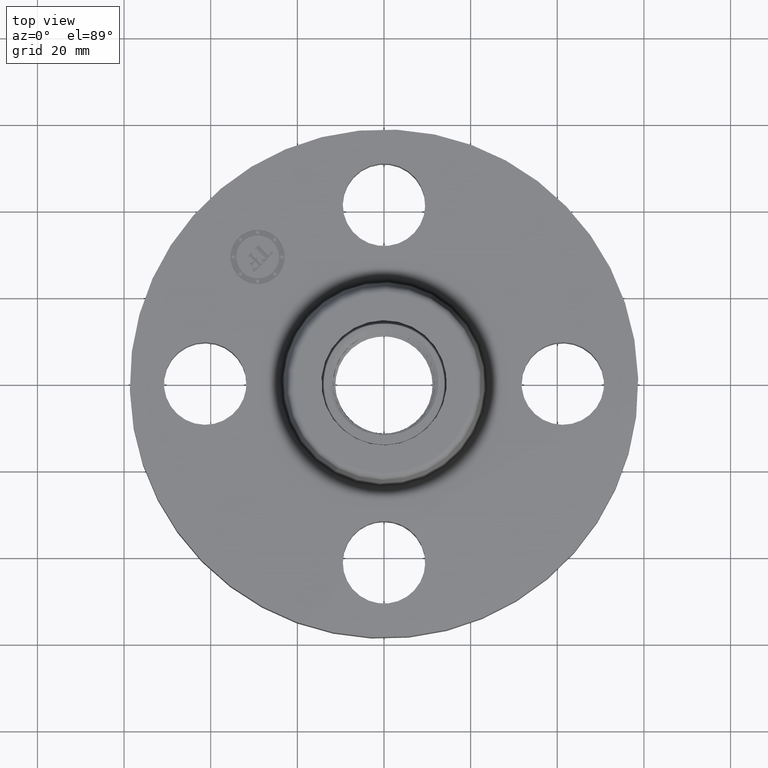
[diagram: clean part render]
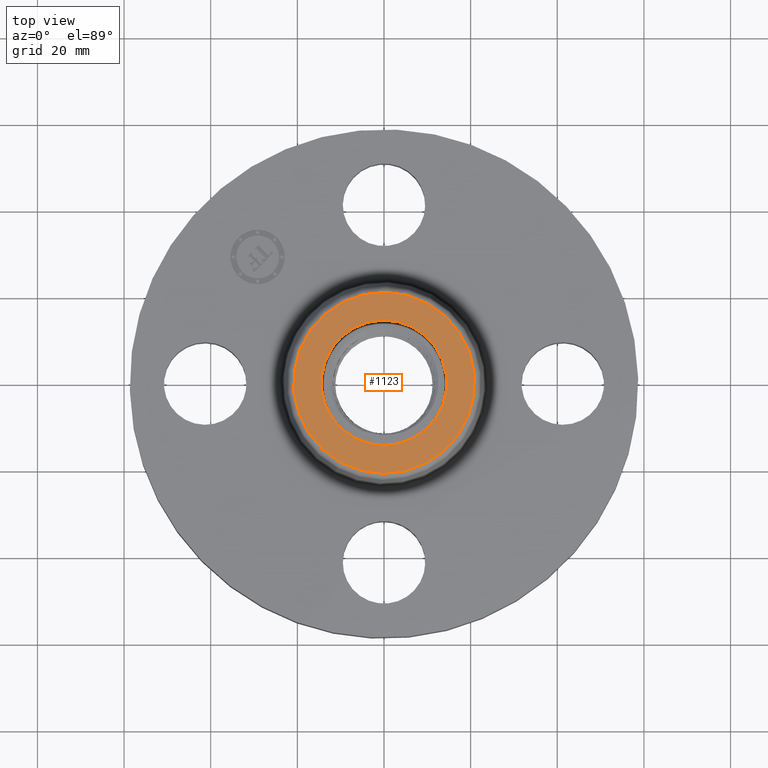
[diagram: same view with one face highlighted and labeled with its STEP entity id]
A machine part, top view. The second image highlights one B-rep face of the part: STEP entity #1123.
In plain terms, the highlighted planar face has unit normal (0, 0, -1).
Its self-contained STEP definition (entity closure, byte-faithful):
#299=AXIS2_PLACEMENT_3D('Circle Axis2P3D',#297,#298,$) ;
#325=AXIS2_PLACEMENT_3D('Circle Axis2P3D',#323,#324,$) ;
#722=AXIS2_PLACEMENT_3D('Circle Axis2P3D',#720,#721,$) ;
#746=AXIS2_PLACEMENT_3D('Circle Axis2P3D',#744,#745,$) ;
#1113=AXIS2_PLACEMENT_3D('Plane Axis2P3D',#1110,#1111,#1112) ;
#297=CARTESIAN_POINT('Axis2P3D Location',(0.,0.,1.)) ;
#301=CARTESIAN_POINT('Vertex',(-0.273272557005,0.50022206028,1.)) ;
#303=CARTESIAN_POINT('Vertex',(0.273272557005,-0.50022206028,1.)) ;
#323=CARTESIAN_POINT('Axis2P3D Location',(0.,0.,1.)) ;
#717=CARTESIAN_POINT('Vertex',(-0.394399308808,-0.721943092224,1.)) ;
#720=CARTESIAN_POINT('Axis2P3D Location',(0.,0.,1.)) ;
#724=CARTESIAN_POINT('Vertex',(0.394399308808,0.721943092224,1.)) ;
#744=CARTESIAN_POINT('Axis2P3D Location',(0.,0.,1.)) ;
#1110=CARTESIAN_POINT('Axis2P3D Location',(0.,0.822649769463,1.)) ;
#298=DIRECTION('Axis2P3D Direction',(0.,0.,0.0393700787402)) ;
#324=DIRECTION('Axis2P3D Direction',(0.,0.,0.0393700787402)) ;
#721=DIRECTION('Axis2P3D Direction',(0.,0.,-0.0393700787402)) ;
#745=DIRECTION('Axis2P3D Direction',(0.,0.,-0.0393700787402)) ;
#1111=DIRECTION('Axis2P3D Direction',(0.,0.,-0.0393700787402)) ;
#1112=DIRECTION('Axis2P3D XDirection',(0.0393700787402,0.,0.)) ;
#1116=ORIENTED_EDGE('',*,*,#748,.F.) ;
#1117=ORIENTED_EDGE('',*,*,#726,.F.) ;
#1120=ORIENTED_EDGE('',*,*,#305,.T.) ;
#1121=ORIENTED_EDGE('',*,*,#327,.T.) ;
#1122=FACE_BOUND('',#1119,.T.) ;
#1123=ADVANCED_FACE('PartBody',(#1118,#1122),#1114,.F.) ;
#300=CIRCLE('generated circle',#299,0.570000000002) ;
#326=CIRCLE('generated circle',#325,0.570000000002) ;
#723=CIRCLE('generated circle',#722,0.822649769463) ;
#747=CIRCLE('generated circle',#746,0.822649769463) ;
#305=EDGE_CURVE('',#302,#304,#300,.F.) ;
#327=EDGE_CURVE('',#304,#302,#326,.F.) ;
#726=EDGE_CURVE('',#718,#725,#723,.T.) ;
#748=EDGE_CURVE('',#725,#718,#747,.T.) ;
#1115=EDGE_LOOP('',(#1116,#1117)) ;
#1119=EDGE_LOOP('',(#1120,#1121)) ;
#1118=FACE_OUTER_BOUND('',#1115,.T.) ;
#1114=PLANE('',#1113) ;
#302=VERTEX_POINT('',#301) ;
#304=VERTEX_POINT('',#303) ;
#718=VERTEX_POINT('',#717) ;
#725=VERTEX_POINT('',#724) ;